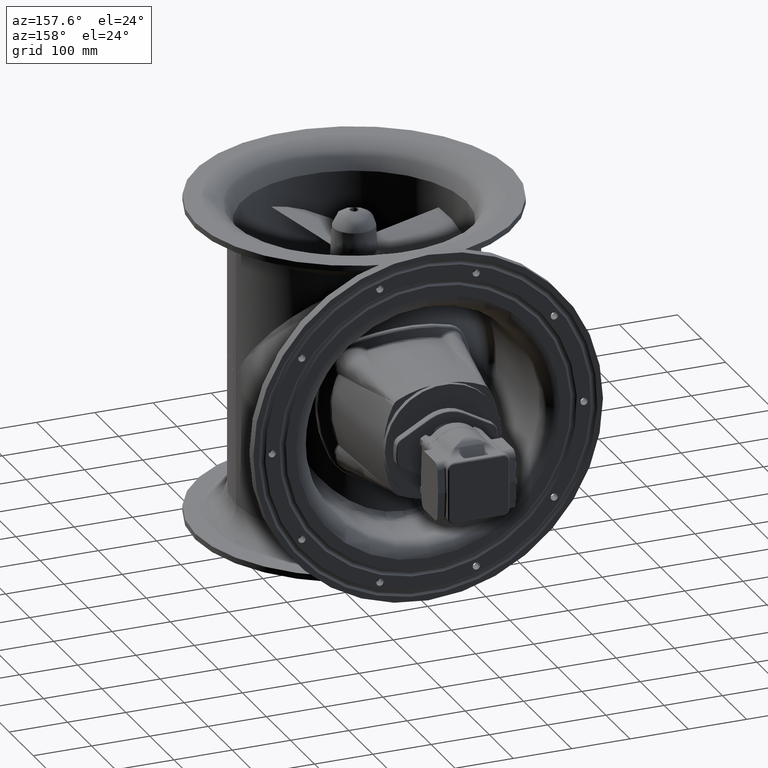
[diagram: clean part render]
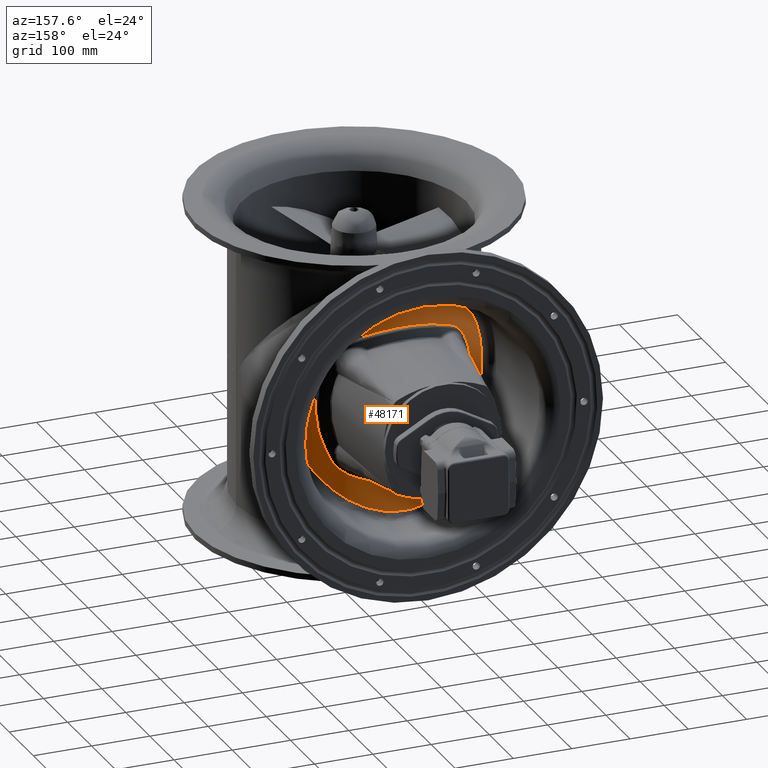
[diagram: same view with one face highlighted and labeled with its STEP entity id]
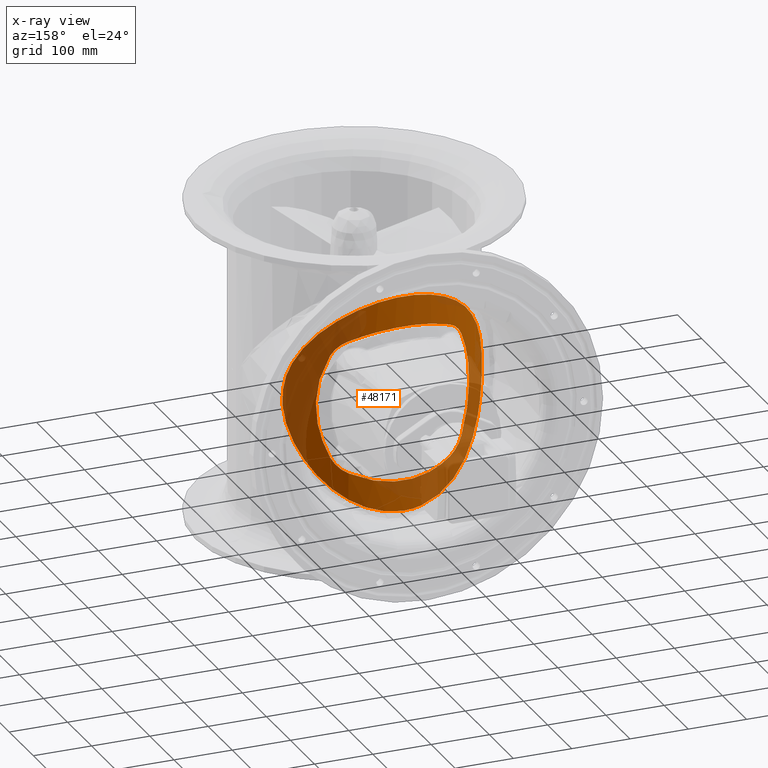
[diagram: x-ray of the same camera — body ghosted, the highlighted face saturated]
A machine part, auxiliary view. The second image highlights one B-rep face of the part: STEP entity #48171.
The next image is the same camera in x-ray: the body ghosted, the highlighted face saturated — about 51% of this face is hidden behind the body in this view.
In plain terms, the highlighted cylindrical surface (partial cylindrical patch) has radius 207 mm, axis along (0, -0, 1).
Its self-contained STEP definition (entity closure, byte-faithful):
#11953=FACE_BOUND('',#15103,.T.);
#12333=FACE_OUTER_BOUND('',#15102,.T.);
#15102=EDGE_LOOP('',(#30389));
#15103=EDGE_LOOP('',(#30390,#30391,#30392,#30393,#30394,#30395,#30396,#30397));
#18251=B_SPLINE_CURVE_WITH_KNOTS('',3,(#68325,#68326,#68327,#68328,#68329,
#68330,#68331,#68332,#68333,#68334,#68335,#68336,#68337,#68338,#68339,#68340,
#68341,#68342,#68343,#68344,#68345,#68346,#68347,#68348,#68349,#68350,#68351,
#68352,#68353,#68354,#68355,#68356,#68357,#68358,#68359,#68360,#68361,#68362,
#68363,#68364,#68365,#68366,#68367,#68368,#68369,#68370,#68371,#68372,#68373,
#68374,#68375,#68376,#68377,#68378,#68379,#68380,#68381,#68382,#68383,#68384,
#68385,#68386,#68387,#68388,#68389,#68390,#68391,#68392,#68393,#68394,#68395,
#68396,#68397,#68398,#68399,#68400,#68401),.UNSPECIFIED.,.T.,.F.,(4,1,1,
1,1,1,1,1,1,1,1,1,1,1,1,1,1,1,1,1,1,1,1,1,1,1,1,1,1,1,1,1,1,1,1,1,1,1,1,
1,1,1,1,1,1,1,1,1,1,1,1,1,1,1,1,1,1,1,1,1,1,1,1,1,1,1,1,1,1,1,1,1,1,1,4),
(-183.789862350285,-180.507990159418,-179.41400234027,-177.226026701974,
-175.038051063678,-173.397069334956,-172.850075425382,-170.662099787086,
-168.47412414879,-166.833142420068,-166.286148510494,-164.341281276453,
-162.396414042412,-161.667088829647,-160.451546808371,-158.50667957433,
-156.561812340289,-155.103161914759,-154.616945106249,-153.158294680718,
-151.699644255187,-151.334981648805,-150.240993829657,-148.782343404126,
-145.865042553065,-145.500379946682,-144.406392127534,-142.947741702003,
-140.030440850942,-138.936453031794,-138.571790425412,-136.14070638286,
-135.16827276584,-133.709622340309,-131.278538297758,-130.306104680738,
-127.388803829677,-125.443936595636,-123.25596095734,-122.526635744574,
-119.609334893513,-116.692034042452,-114.504058404156,-113.774733191391,
-112.31608276586,-110.857432340329,-110.128107127564,-107.940131489268,
-105.022830638207,-102.105529787145,-100.282216755232,-99.188228936084,
-96.2709280850227,-95.7239341754488,-94.0829524467268,-92.4419707180048,
-91.8949768084308,-89.7070011701348,-87.5190255318389,-86.6985346674779,
-86.4250377126909,-85.3310498935429,-83.1430742552469,-81.5020925265249,
-80.9550986169509,-78.767122978655,-76.579147340359,-74.938165611637,-74.391171702063,
-72.2031960637671,-70.0152204254711,-68.9212326063231,-66.7332569680271,
-65.6392691488792,-61.2632266057103),.UNSPECIFIED.);
#18252=B_SPLINE_CURVE_WITH_KNOTS('',3,(#68404,#68405,#68406,#68407,#68408,
#68409),.UNSPECIFIED.,.F.,.F.,(4,2,4),(-4.02798184548258,-1.94956902567205,
0.),.UNSPECIFIED.);
#18253=B_SPLINE_CURVE_WITH_KNOTS('',3,(#68411,#68412,#68413,#68414,#68415,
#68416,#68417,#68418,#68419,#68420,#68421,#68422),.UNSPECIFIED.,.F.,.F.,
(4,2,2,2,2,4),(-18.6224976785983,-15.1259766546319,-11.5643673725124,-7.24103311535867,
-3.77131141303059,-6.45954177258545E-7),.UNSPECIFIED.);
#18254=B_SPLINE_CURVE_WITH_KNOTS('',3,(#68424,#68425,#68426,#68427,#68428,
#68429),.UNSPECIFIED.,.F.,.F.,(4,2,4),(-4.01812958164608,-1.99810740166565,
-6.64744099765358E-7),.UNSPECIFIED.);
#18255=B_SPLINE_CURVE_WITH_KNOTS('',3,(#68431,#68432,#68433,#68434,#68435,
#68436,#68437,#68438),.UNSPECIFIED.,.F.,.F.,(4,2,2,4),(-18.628123274037,
-12.3120466527112,-6.41621361449221,-7.67878237439845E-7),.UNSPECIFIED.);
#18256=B_SPLINE_CURVE_WITH_KNOTS('',3,(#68440,#68441,#68442,#68443,#68444,
#68445),.UNSPECIFIED.,.F.,.F.,(4,2,4),(-4.02798118737267,-1.94956903802519,
-7.67435327730936E-7),.UNSPECIFIED.);
#18257=B_SPLINE_CURVE_WITH_KNOTS('',3,(#68447,#68448,#68449,#68450,#68451,
#68452,#68453,#68454,#68455,#68456,#68457,#68458),.UNSPECIFIED.,.F.,.F.,
(4,2,2,2,2,4),(-18.4214469338908,-14.9266368593129,-11.3663649324242,-7.13041377674543,
-3.68834329181639,0.),.UNSPECIFIED.);
#18258=B_SPLINE_CURVE_WITH_KNOTS('',3,(#68460,#68461,#68462,#68463,#68464,
#68465),.UNSPECIFIED.,.F.,.F.,(4,2,4),(-4.01837002188154,-1.99666887401809,
-1.53073758113464E-8),.UNSPECIFIED.);
#18259=B_SPLINE_CURVE_WITH_KNOTS('',3,(#68466,#68467,#68468,#68469,#68470,
#68471,#68472,#68473),.UNSPECIFIED.,.F.,.F.,(4,2,2,4),(-18.5865554317575,
-12.2972265722401,-6.41384531222055,-1.1599041727095E-9),.UNSPECIFIED.);
#18634=VERTEX_POINT('',#68324);
#18635=VERTEX_POINT('',#68402);
#18636=VERTEX_POINT('',#68403);
#18637=VERTEX_POINT('',#68410);
#18638=VERTEX_POINT('',#68423);
#18639=VERTEX_POINT('',#68430);
#18640=VERTEX_POINT('',#68439);
#18641=VERTEX_POINT('',#68446);
#18642=VERTEX_POINT('',#68459);
#23186=EDGE_CURVE('',#18634,#18634,#18251,.T.);
#23187=EDGE_CURVE('',#18635,#18636,#18252,.T.);
#23188=EDGE_CURVE('',#18637,#18635,#18253,.T.);
#23189=EDGE_CURVE('',#18638,#18637,#18254,.T.);
#23190=EDGE_CURVE('',#18639,#18638,#18255,.T.);
#23191=EDGE_CURVE('',#18640,#18639,#18256,.T.);
#23192=EDGE_CURVE('',#18641,#18640,#18257,.T.);
#23193=EDGE_CURVE('',#18642,#18641,#18258,.T.);
#23194=EDGE_CURVE('',#18636,#18642,#18259,.T.);
#30389=ORIENTED_EDGE('',*,*,#23186,.F.);
#30390=ORIENTED_EDGE('',*,*,#23187,.F.);
#30391=ORIENTED_EDGE('',*,*,#23188,.F.);
#30392=ORIENTED_EDGE('',*,*,#23189,.F.);
#30393=ORIENTED_EDGE('',*,*,#23190,.F.);
#30394=ORIENTED_EDGE('',*,*,#23191,.F.);
#30395=ORIENTED_EDGE('',*,*,#23192,.F.);
#30396=ORIENTED_EDGE('',*,*,#23193,.F.);
#30397=ORIENTED_EDGE('',*,*,#23194,.F.);
#45243=CYLINDRICAL_SURFACE('',#50942,207.);
#48171=ADVANCED_FACE('',(#12333,#11953),#45243,.T.);
#50942=AXIS2_PLACEMENT_3D('',#68323,#55878,#55879);
#55878=DIRECTION('center_axis',(3.33066907387543E-16,-1.9598292006493E-16,
1.));
#55879=DIRECTION('ref_axis',(9.99200722162641E-16,1.,1.9598292006493E-16));
#68323=CARTESIAN_POINT('Origin',(-495.000607936234,506.355165407791,-210.715426357864));
#68324=CARTESIAN_POINT('',(-495.126447347077,713.355763221725,-402.234476278141));
#68325=CARTESIAN_POINT('Ctrl Pts',(-495.12644768368,713.356598442309,-402.234476384977));
#68326=CARTESIAN_POINT('Ctrl Pts',(-484.777988643534,713.361410314347,-402.24156611259));
#68327=CARTESIAN_POINT('Ctrl Pts',(-470.970020239705,712.321008478858,-400.891675125236));
#68328=CARTESIAN_POINT('Ctrl Pts',(-451.023749059129,708.824204997789,-396.31367370849));
#68329=CARTESIAN_POINT('Ctrl Pts',(-434.902706329442,704.765877580347,-390.963190365614));
#68330=CARTESIAN_POINT('Ctrl Pts',(-418.235784696246,698.829907700016,-383.013880341041));
#68331=CARTESIAN_POINT('Ctrl Pts',(-407.060659607952,693.823624955044,-376.172602740964));
#68332=CARTESIAN_POINT('Ctrl Pts',(-396.418228539507,688.500381380046,-368.791249035893));
#68333=CARTESIAN_POINT('Ctrl Pts',(-385.093101452816,682.039241545815,-359.66888316085));
#68334=CARTESIAN_POINT('Ctrl Pts',(-372.664075565654,673.529793260921,-347.148664225962));
#68335=CARTESIAN_POINT('Ctrl Pts',(-364.555839136757,667.144882500214,-337.278535393746));
#68336=CARTESIAN_POINT('Ctrl Pts',(-357.427694981038,661.108596291235,-327.604695596698));
#68337=CARTESIAN_POINT('Ctrl Pts',(-350.401421368402,654.641272477839,-316.785026098488));
#68338=CARTESIAN_POINT('Ctrl Pts',(-344.028287686075,648.046262384181,-304.685402817255));
#68339=CARTESIAN_POINT('Ctrl Pts',(-339.262491492243,642.75118684165,-294.059503656893));
#68340=CARTESIAN_POINT('Ctrl Pts',(-334.939272147065,637.69484743558,-283.123384200465));
#68341=CARTESIAN_POINT('Ctrl Pts',(-330.234179731991,631.737503382109,-268.075223951047));
#68342=CARTESIAN_POINT('Ctrl Pts',(-326.644136753121,626.821307899762,-251.36924102326));
#68343=CARTESIAN_POINT('Ctrl Pts',(-324.995573105477,624.457070574517,-238.728063232315));
#68344=CARTESIAN_POINT('Ctrl Pts',(-324.065385437021,623.105876412686,-227.500773387835));
#68345=CARTESIAN_POINT('Ctrl Pts',(-323.661409858345,622.508611028185,-216.152040708641));
#68346=CARTESIAN_POINT('Ctrl Pts',(-324.047713881761,623.079547320364,-205.209821869793));
#68347=CARTESIAN_POINT('Ctrl Pts',(-324.813715586296,624.193561329482,-195.576477689307));
#68348=CARTESIAN_POINT('Ctrl Pts',(-325.910908376236,625.772220196287,-186.055426305098));
#68349=CARTESIAN_POINT('Ctrl Pts',(-329.006395223517,630.10059141503,-168.639974559112));
#68350=CARTESIAN_POINT('Ctrl Pts',(-333.150492884056,635.507180872697,-154.307906207452));
#68351=CARTESIAN_POINT('Ctrl Pts',(-337.797415778521,641.043239762155,-141.848582647993));
#68352=CARTESIAN_POINT('Ctrl Pts',(-341.137152817576,644.886851180741,-133.745211486294));
#68353=CARTESIAN_POINT('Ctrl Pts',(-348.227970942111,652.52141432729,-119.086091419612));
#68354=CARTESIAN_POINT('Ctrl Pts',(-356.689823274428,660.581724566933,-105.39950557312));
#68355=CARTESIAN_POINT('Ctrl Pts',(-364.408922284069,666.992297088985,-95.2307995580518));
#68356=CARTESIAN_POINT('Ctrl Pts',(-371.57937802755,672.651095386073,-86.4526741610026));
#68357=CARTESIAN_POINT('Ctrl Pts',(-379.042922116955,678.000717807923,-78.480081981893));
#68358=CARTESIAN_POINT('Ctrl Pts',(-389.622570154216,684.610265491942,-68.9491863650262));
#68359=CARTESIAN_POINT('Ctrl Pts',(-400.878329655662,690.946708166304,-60.0105438616617));
#68360=CARTESIAN_POINT('Ctrl Pts',(-413.107958206888,696.664426777983,-52.1724605516559));
#68361=CARTESIAN_POINT('Ctrl Pts',(-430.052815013663,703.163734441548,-43.4076041913487));
#68362=CARTESIAN_POINT('Ctrl Pts',(-446.805188580813,708.085217933864,-36.8929324770863));
#68363=CARTESIAN_POINT('Ctrl Pts',(-468.247859301756,711.92261481149,-31.8709261644112));
#68364=CARTESIAN_POINT('Ctrl Pts',(-483.506233717881,713.202260716878,-30.2070528203759));
#68365=CARTESIAN_POINT('Ctrl Pts',(-501.895433700558,713.509914748891,-29.8073062435684));
#68366=CARTESIAN_POINT('Ctrl Pts',(-522.588740987924,712.117309897709,-31.6149233349361));
#68367=CARTESIAN_POINT('Ctrl Pts',(-546.811766705783,707.213311518678,-38.033588747813));
#68368=CARTESIAN_POINT('Ctrl Pts',(-563.339033821826,701.897581984406,-45.1105676849103));
#68369=CARTESIAN_POINT('Ctrl Pts',(-575.01490207763,697.343492873845,-51.2618943588687));
#68370=CARTESIAN_POINT('Ctrl Pts',(-584.339839452031,693.214096126827,-56.8997169305643));
#68371=CARTESIAN_POINT('Ctrl Pts',(-593.153500219146,688.677147390243,-63.2096624842952));
#68372=CARTESIAN_POINT('Ctrl Pts',(-603.223000908498,682.948692470511,-71.3143913228945));
#68373=CARTESIAN_POINT('Ctrl Pts',(-615.725707986285,674.861304052377,-83.0410769342495));
#68374=CARTESIAN_POINT('Ctrl Pts',(-630.543492920974,663.215956964868,-100.923919518589));
#68375=CARTESIAN_POINT('Ctrl Pts',(-642.375107550265,651.948147698036,-120.063631811785));
#68376=CARTESIAN_POINT('Ctrl Pts',(-649.798491853668,643.855174552103,-135.768730729241));
#68377=CARTESIAN_POINT('Ctrl Pts',(-656.230483253777,636.316328402104,-152.162885732589));
#68378=CARTESIAN_POINT('Ctrl Pts',(-660.186588303534,631.154991019612,-165.849956476347));
#68379=CARTESIAN_POINT('Ctrl Pts',(-663.397457615032,626.753120223452,-181.868740684156));
#68380=CARTESIAN_POINT('Ctrl Pts',(-665.221325819912,624.154085922737,-194.257964834569));
#68381=CARTESIAN_POINT('Ctrl Pts',(-666.06797594781,622.910262234367,-206.950927567431));
#68382=CARTESIAN_POINT('Ctrl Pts',(-666.266578683024,622.6158260838,-221.55070095033));
#68383=CARTESIAN_POINT('Ctrl Pts',(-665.391753198769,623.915714669381,-237.957073672374));
#68384=CARTESIAN_POINT('Ctrl Pts',(-662.709426062773,627.733151307971,-254.665278424386));
#68385=CARTESIAN_POINT('Ctrl Pts',(-660.330333386126,630.921307979097,-264.8266747527));
#68386=CARTESIAN_POINT('Ctrl Pts',(-658.590547546377,633.201616835666,-271.477785569415));
#68387=CARTESIAN_POINT('Ctrl Pts',(-655.459790818858,637.201370770501,-282.042564654394));
#68388=CARTESIAN_POINT('Ctrl Pts',(-650.109287124742,643.568904161312,-296.025659858865));
#68389=CARTESIAN_POINT('Ctrl Pts',(-644.385058708941,649.70496329261,-307.738300225742));
#68390=CARTESIAN_POINT('Ctrl Pts',(-638.114635214452,655.999318847692,-319.051783172686));
#68391=CARTESIAN_POINT('Ctrl Pts',(-630.371135443665,663.185774487608,-331.118330939258));
#68392=CARTESIAN_POINT('Ctrl Pts',(-619.454964401429,671.959494112045,-344.769796549279));
#68393=CARTESIAN_POINT('Ctrl Pts',(-610.565336892995,678.16645171215,-353.970714031918));
#68394=CARTESIAN_POINT('Ctrl Pts',(-601.160363648592,684.175070885256,-362.683893513088));
#68395=CARTESIAN_POINT('Ctrl Pts',(-589.897132715368,690.607542611998,-371.766915273248));
#68396=CARTESIAN_POINT('Ctrl Pts',(-576.097243470516,696.987700687213,-380.507197415145));
#68397=CARTESIAN_POINT('Ctrl Pts',(-561.335633898077,702.620079853382,-388.098804371204));
#68398=CARTESIAN_POINT('Ctrl Pts',(-548.932543200002,706.395226204541,-393.113004373126));
#68399=CARTESIAN_POINT('Ctrl Pts',(-526.143523684567,711.582259670049,-399.937989194225));
#68400=CARTESIAN_POINT('Ctrl Pts',(-508.925065005439,713.350182802988,-402.225023269953));
#68401=CARTESIAN_POINT('Ctrl Pts',(-495.12644768368,713.356598442309,-402.234476384977));
#68402=CARTESIAN_POINT('',(-607.685945422789,679.994518768001,-127.975073044364));
#68403=CARTESIAN_POINT('',(-581.997208964024,694.186346878894,-101.634276269766));
#68404=CARTESIAN_POINT('Ctrl Pts',(-607.684465104923,679.996601515613,-127.976344921338));
#68405=CARTESIAN_POINT('Ctrl Pts',(-604.951239659075,681.770316319253,-121.890659836009));
#68406=CARTESIAN_POINT('Ctrl Pts',(-601.190947601676,684.118866347507,-116.475539505164));
#68407=CARTESIAN_POINT('Ctrl Pts',(-592.366107409891,689.092678540418,-107.667052409614));
#68408=CARTESIAN_POINT('Ctrl Pts',(-587.418384782848,691.675561292761,-104.19125405977));
#68409=CARTESIAN_POINT('Ctrl Pts',(-581.997140640918,694.186481479853,-101.634553334527));
#68410=CARTESIAN_POINT('',(-607.686287740391,679.994808842873,-304.259435101795));
#68411=CARTESIAN_POINT('Ctrl Pts',(-607.685482885009,679.995941027399,-304.258743542739));
#68412=CARTESIAN_POINT('Ctrl Pts',(-612.226914254163,677.048760999577,-294.148177677403));
#68413=CARTESIAN_POINT('Ctrl Pts',(-616.015201322075,674.337216001633,-283.551694276318));
#68414=CARTESIAN_POINT('Ctrl Pts',(-621.955454577421,669.895604987914,-261.540853382517));
#68415=CARTESIAN_POINT('Ctrl Pts',(-624.059455575526,668.204482688364,-250.200871272171));
#68416=CARTESIAN_POINT('Ctrl Pts',(-626.718110017679,666.051808511958,-224.51484613751));
#68417=CARTESIAN_POINT('Ctrl Pts',(-626.815989726722,665.968858208714,-210.370972489404));
#68418=CARTESIAN_POINT('Ctrl Pts',(-624.464006610777,667.879307561447,-184.808081753113));
#68419=CARTESIAN_POINT('Ctrl Pts',(-622.53391318656,669.439427810598,-173.553718535597));
#68420=CARTESIAN_POINT('Ctrl Pts',(-616.711972277257,673.835854275454,-150.66120742908));
#68421=CARTESIAN_POINT('Ctrl Pts',(-612.66336949805,676.765521521425,-139.057932931993));
#68422=CARTESIAN_POINT('Ctrl Pts',(-607.685485442785,679.99593936752,-127.975693754408));
#68423=CARTESIAN_POINT('',(-581.997208710916,694.186346457564,-330.600155190745));
#68424=CARTESIAN_POINT('Ctrl Pts',(-581.997140030455,694.186481762598,-330.599876676771));
#68425=CARTESIAN_POINT('Ctrl Pts',(-587.62398334377,691.580335650246,-327.946196488323));
#68426=CARTESIAN_POINT('Ctrl Pts',(-592.743546277997,688.894656451522,-324.300069995982));
#68427=CARTESIAN_POINT('Ctrl Pts',(-601.454670474445,683.953964212752,-315.374722986156));
#68428=CARTESIAN_POINT('Ctrl Pts',(-605.047329760582,681.70795894576,-310.129816674212));
#68429=CARTESIAN_POINT('Ctrl Pts',(-607.684459605128,679.996605084681,-304.25809051671));
#68430=CARTESIAN_POINT('',(-408.004261885983,694.185922456572,-330.600011990436));
#68431=CARTESIAN_POINT('Ctrl Pts',(-408.004689997268,694.186766215421,-330.598275599903));
#68432=CARTESIAN_POINT('Ctrl Pts',(-425.521954483936,702.300046926679,-338.859660782553));
#68433=CARTESIAN_POINT('Ctrl Pts',(-444.853416819645,708.264625241641,-344.857671667374));
#68434=CARTESIAN_POINT('Ctrl Pts',(-484.682070988061,714.008659669078,-350.627205896147));
#68435=CARTESIAN_POINT('Ctrl Pts',(-504.240347625861,714.06242771459,-350.682202234819));
#68436=CARTESIAN_POINT('Ctrl Pts',(-544.489906516942,708.464752518745,-345.057274757993));
#68437=CARTESIAN_POINT('Ctrl Pts',(-564.15471312647,702.45036367453,-339.012721476512));
#68438=CARTESIAN_POINT('Ctrl Pts',(-581.996519479171,694.1867691778,-330.598278616359));
#68439=CARTESIAN_POINT('',(-382.314927705088,679.994809204723,-304.259435197268));
#68440=CARTESIAN_POINT('Ctrl Pts',(-382.316753555056,679.996603324555,-304.258092255806));
#68441=CARTESIAN_POINT('Ctrl Pts',(-385.049979416113,681.770318335288,-310.343776448342));
#68442=CARTESIAN_POINT('Ctrl Pts',(-388.810268197073,684.118866310972,-315.758891685055));
#68443=CARTESIAN_POINT('Ctrl Pts',(-397.635108547258,689.092678583443,-324.567379010115));
#68444=CARTESIAN_POINT('Ctrl Pts',(-402.582825301379,691.675558389051,-328.04317374188));
#68445=CARTESIAN_POINT('Ctrl Pts',(-408.004068875327,694.186478535885,-330.599875129332));
#68446=CARTESIAN_POINT('',(-382.315268982128,679.994520011479,-127.975072716185));
#68447=CARTESIAN_POINT('Ctrl Pts',(-382.315729167646,679.995938548516,-127.97569291733));
#68448=CARTESIAN_POINT('Ctrl Pts',(-377.700325745653,677.000753917232,-138.250943442282));
#68449=CARTESIAN_POINT('Ctrl Pts',(-373.889797108943,674.268401324857,-148.945058710646));
#68450=CARTESIAN_POINT('Ctrl Pts',(-367.912350553052,669.792540385477,-171.291630899103));
#68451=CARTESIAN_POINT('Ctrl Pts',(-365.807281274973,668.096749389473,-182.831768065502));
#68452=CARTESIAN_POINT('Ctrl Pts',(-363.252577812121,666.025606032921,-208.640597559168));
#68453=CARTESIAN_POINT('Ctrl Pts',(-363.221205074817,665.998914824609,-222.670571020372));
#68454=CARTESIAN_POINT('Ctrl Pts',(-365.633417774355,667.956743021301,-248.117215830339));
#68455=CARTESIAN_POINT('Ctrl Pts',(-367.59405167454,669.539363286388,-259.310432774724));
#68456=CARTESIAN_POINT('Ctrl Pts',(-373.446168745889,673.94957445364,-282.031871765513));
#68457=CARTESIAN_POINT('Ctrl Pts',(-377.447359091365,676.836590290147,-293.420310569461));
#68458=CARTESIAN_POINT('Ctrl Pts',(-382.315731717637,679.995940203343,-304.258744362485));
#68459=CARTESIAN_POINT('',(-408.004261306643,694.185923420862,-101.63441928661));
#68460=CARTESIAN_POINT('Ctrl Pts',(-408.004067924865,694.186478095666,-101.634553980531));
#68461=CARTESIAN_POINT('Ctrl Pts',(-402.372975097537,691.578363477022,-104.290239654594));
#68462=CARTESIAN_POINT('Ctrl Pts',(-397.249972356343,688.890607040449,-107.939846360344));
#68463=CARTESIAN_POINT('Ctrl Pts',(-388.541294834166,683.950673221862,-116.867444697858));
#68464=CARTESIAN_POINT('Ctrl Pts',(-384.951978456662,681.706721193944,-122.108841165692));
#68465=CARTESIAN_POINT('Ctrl Pts',(-382.316746405932,679.996598685162,-127.976342105196));
#68466=CARTESIAN_POINT('Ctrl Pts',(-581.996520883767,694.186768527249,-101.636149350173));
#68467=CARTESIAN_POINT('Ctrl Pts',(-564.468716988988,702.304930095735,-93.3697955807586));
#68468=CARTESIAN_POINT('Ctrl Pts',(-545.179451277229,708.254127004711,-87.3886245944529));
#68469=CARTESIAN_POINT('Ctrl Pts',(-505.360407709474,714.008243114528,-81.6066316231726));
#68470=CARTESIAN_POINT('Ctrl Pts',(-485.812303606591,714.063754611731,-81.552008717407));
#68471=CARTESIAN_POINT('Ctrl Pts',(-445.545554684163,708.475847756155,-87.16445672442));
#68472=CARTESIAN_POINT('Ctrl Pts',(-425.839911309564,702.44731168958,-93.2248148743945));
#68473=CARTESIAN_POINT('Ctrl Pts',(-408.004688600868,694.186765568665,-101.636152362763));